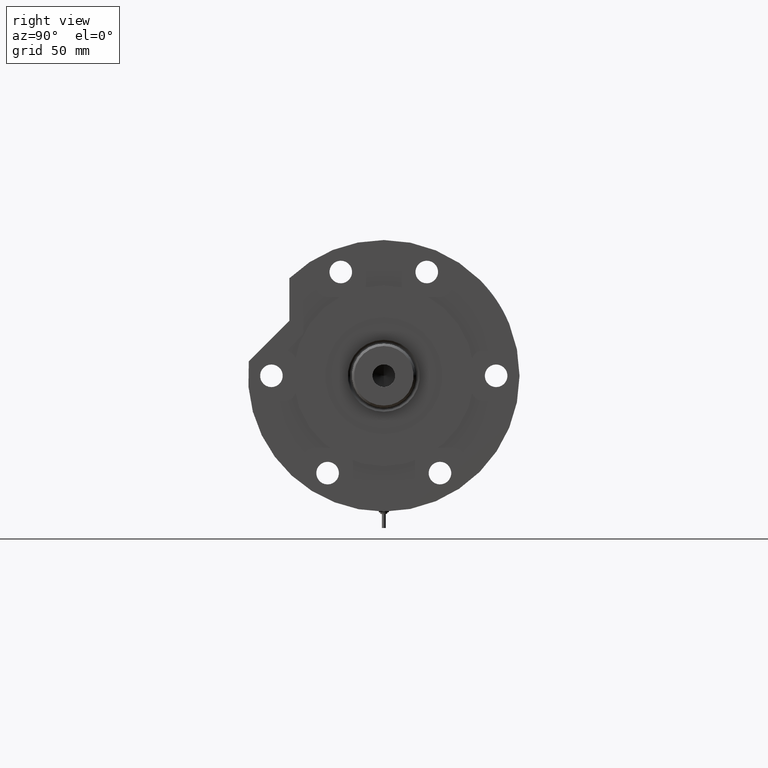
[diagram: clean part render]
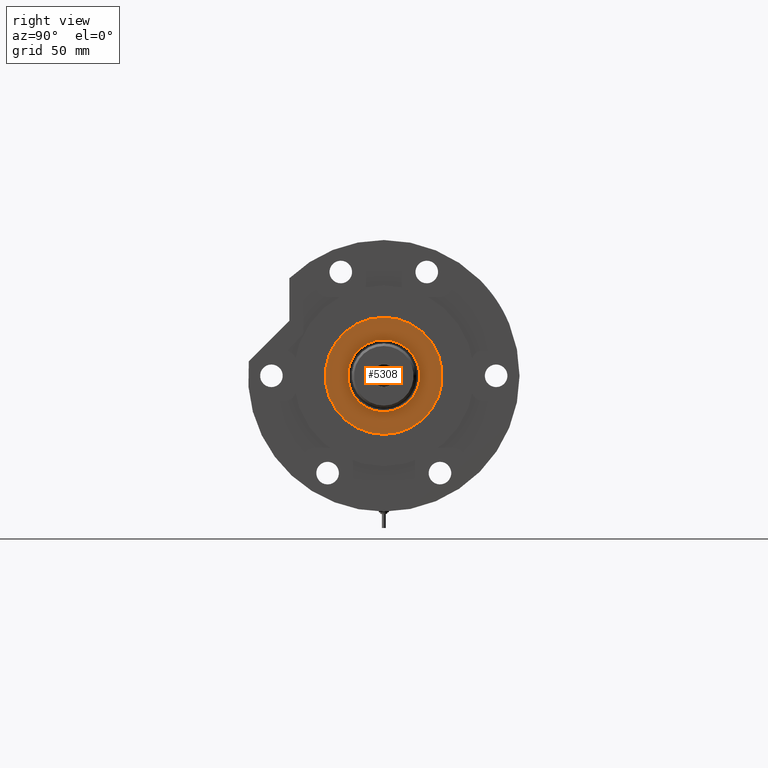
[diagram: same view with one face highlighted and labeled with its STEP entity id]
A machine part, right view. The second image highlights one B-rep face of the part: STEP entity #5308.
In plain terms, the highlighted planar face has unit normal (1, 0, -0).
Its self-contained STEP definition (entity closure, byte-faithful):
#192 = CIRCLE ( 'NONE', #6159, 23.05000000000002913 ) ;
#221 = CIRCLE ( 'NONE', #3242, 23.05000000000002913 ) ;
#265 = VERTEX_POINT ( 'NONE', #3232 ) ;
#446 = VERTEX_POINT ( 'NONE', #2816 ) ;
#563 = DIRECTION ( 'NONE',  ( 1.000000000000000000, 0.000000000000000000, 0.000000000000000000 ) ) ;
#910 = ORIENTED_EDGE ( 'NONE', *, *, #6354, .T. ) ;
#941 = ORIENTED_EDGE ( 'NONE', *, *, #1517, .T. ) ;
#947 = CARTESIAN_POINT ( 'NONE',  ( 0.000000000000000000, 0.000000000000000000, 59.89999999999999147 ) ) ;
#1152 = ORIENTED_EDGE ( 'NONE', *, *, #3636, .T. ) ;
#1422 = ORIENTED_EDGE ( 'NONE', *, *, #6062, .T. ) ;
#1458 = DIRECTION ( 'NONE',  ( 0.000000000000000000, 0.000000000000000000, 1.000000000000000000 ) ) ;
#1517 = EDGE_CURVE ( 'NONE', #7043, #265, #7243, .T. ) ;
#1549 = CARTESIAN_POINT ( 'NONE',  ( 0.000000000000000000, 0.000000000000000000, 59.89999999999999147 ) ) ;
#1568 = PLANE ( 'NONE',  #6663 ) ;
#1769 = EDGE_LOOP ( 'NONE', ( #910, #941 ) ) ;
#2000 = DIRECTION ( 'NONE',  ( 1.000000000000000000, 0.000000000000000000, 0.000000000000000000 ) ) ;
#2071 = CARTESIAN_POINT ( 'NONE',  ( 0.000000000000000000, 0.000000000000000000, 59.89999999999999147 ) ) ;
#2381 = CARTESIAN_POINT ( 'NONE',  ( 23.05000000000002913, 0.000000000000000000, 59.89999999999999147 ) ) ;
#2553 = DIRECTION ( 'NONE',  ( 1.000000000000000000, 0.000000000000000000, 0.000000000000000000 ) ) ;
#2728 = VERTEX_POINT ( 'NONE', #2381 ) ;
#2773 = FACE_OUTER_BOUND ( 'NONE', #1769, .T. ) ;
#2816 = CARTESIAN_POINT ( 'NONE',  ( -23.05000000000002913, 2.822810872034651791E-15, 59.89999999999999147 ) ) ;
#3232 = CARTESIAN_POINT ( 'NONE',  ( -37.50000000000000711, 0.000000000000000000, 59.89999999999999147 ) ) ;
#3242 = AXIS2_PLACEMENT_3D ( 'NONE', #1549, #7430, #4964 ) ;
#3636 = EDGE_CURVE ( 'NONE', #2728, #446, #192, .T. ) ;
#3900 = DIRECTION ( 'NONE',  ( -0.000000000000000000, -0.000000000000000000, -1.000000000000000000 ) ) ;
#3914 = DIRECTION ( 'NONE',  ( 0.000000000000000000, 0.000000000000000000, 1.000000000000000000 ) ) ;
#3933 = AXIS2_PLACEMENT_3D ( 'NONE', #2071, #1458, #2553 ) ;
#3950 = CARTESIAN_POINT ( 'NONE',  ( 0.000000000000000000, 0.000000000000000000, 59.89999999999999147 ) ) ;
#3981 = CARTESIAN_POINT ( 'NONE',  ( 0.000000000000000000, 0.000000000000000000, 59.89999999999999147 ) ) ;
#4964 = DIRECTION ( 'NONE',  ( 1.000000000000000000, 0.000000000000000000, 0.000000000000000000 ) ) ;
#5102 = FACE_BOUND ( 'NONE', #7450, .T. ) ;
#5308 = ADVANCED_FACE ( 'NONE', ( #5102, #2773 ), #1568, .T. ) ;
#6062 = EDGE_CURVE ( 'NONE', #446, #2728, #221, .T. ) ;
#6065 = CIRCLE ( 'NONE', #7284, 37.50000000000000711 ) ;
#6159 = AXIS2_PLACEMENT_3D ( 'NONE', #947, #3900, #2000 ) ;
#6331 = DIRECTION ( 'NONE',  ( 0.000000000000000000, 0.000000000000000000, 1.000000000000000000 ) ) ;
#6343 = DIRECTION ( 'NONE',  ( 1.000000000000000000, 0.000000000000000000, -0.000000000000000000 ) ) ;
#6354 = EDGE_CURVE ( 'NONE', #265, #7043, #6065, .T. ) ;
#6663 = AXIS2_PLACEMENT_3D ( 'NONE', #3950, #3914, #6343 ) ;
#7043 = VERTEX_POINT ( 'NONE', #7108 ) ;
#7108 = CARTESIAN_POINT ( 'NONE',  ( 37.50000000000000711, 4.592425496802575156E-15, 59.89999999999999147 ) ) ;
#7243 = CIRCLE ( 'NONE', #3933, 37.50000000000000711 ) ;
#7284 = AXIS2_PLACEMENT_3D ( 'NONE', #3981, #6331, #563 ) ;
#7430 = DIRECTION ( 'NONE',  ( -0.000000000000000000, -0.000000000000000000, -1.000000000000000000 ) ) ;
#7450 = EDGE_LOOP ( 'NONE', ( #1152, #1422 ) ) ;